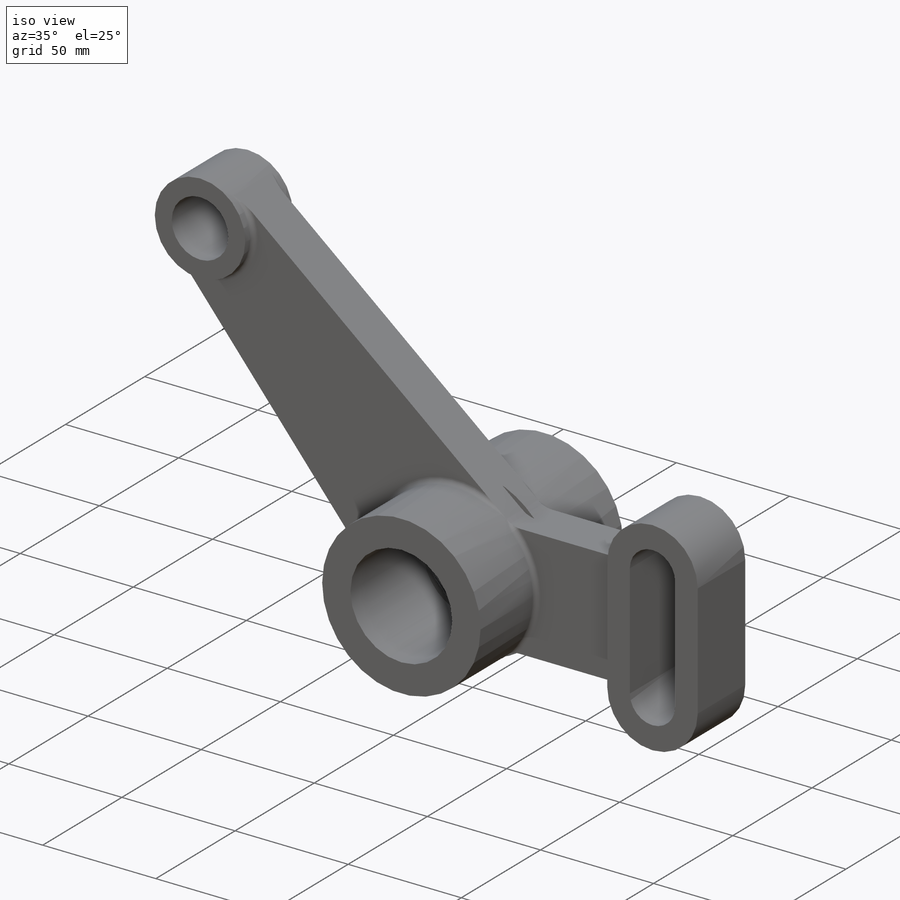
[diagram: iso view]
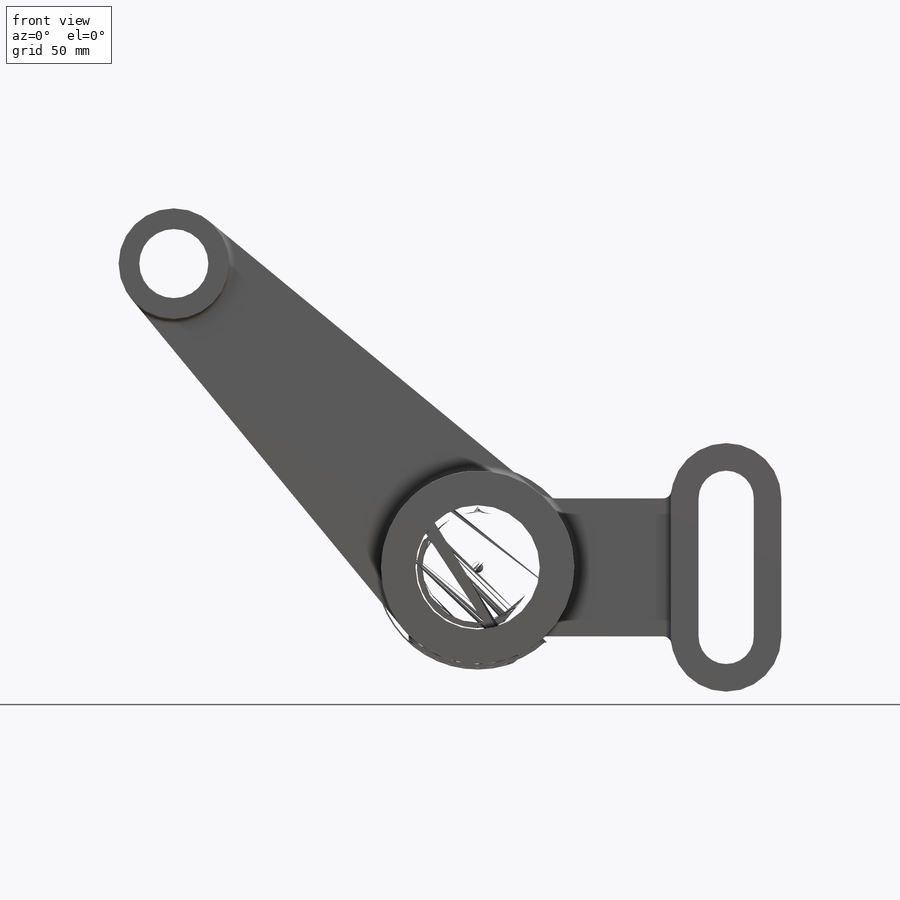
[diagram: front view]
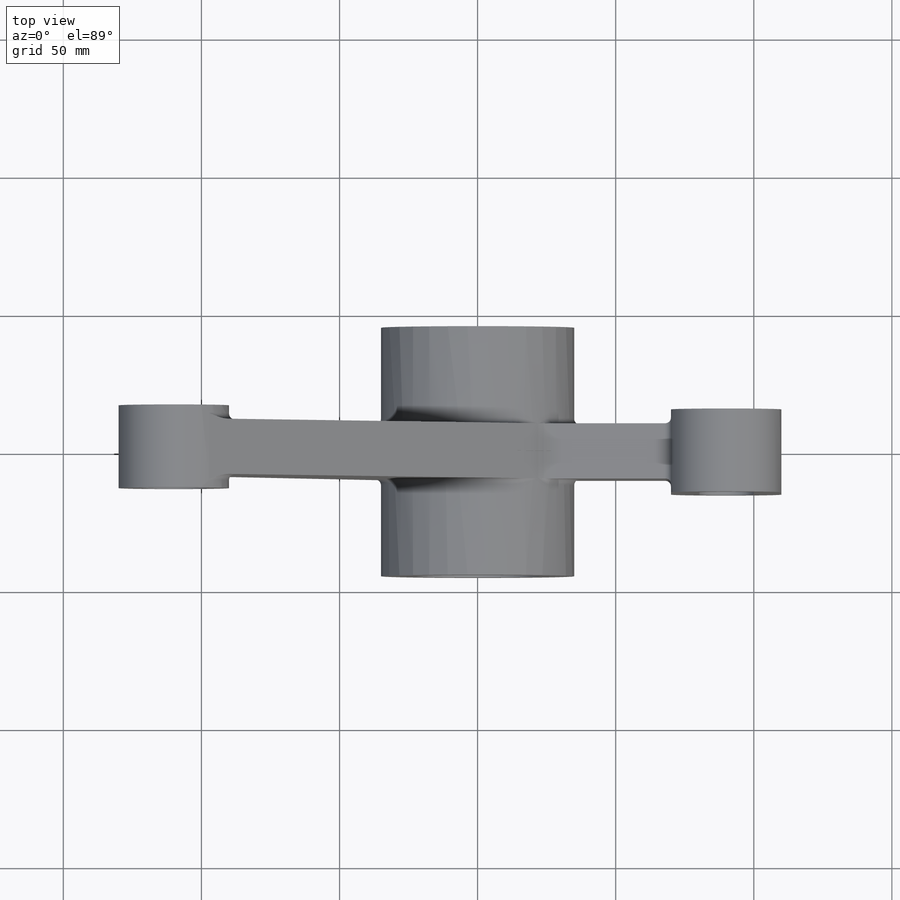
[diagram: top view]
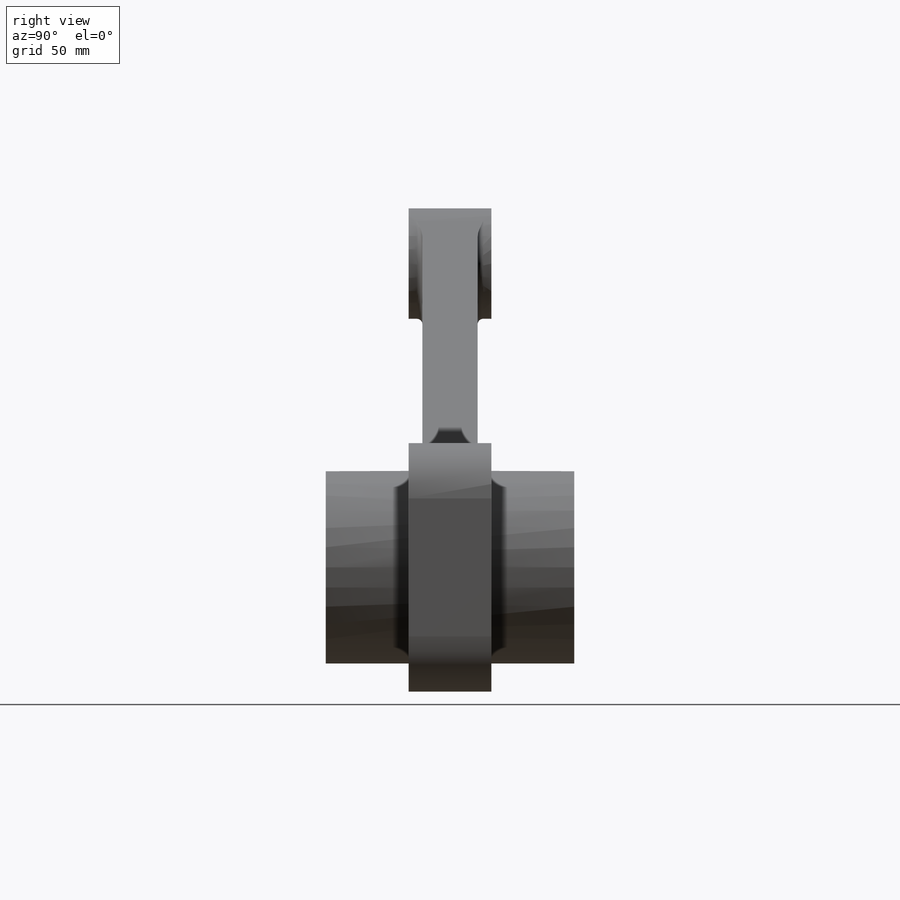
[diagram: right view]
SOLIDWORKS PART (.sldprt)
format: sldprt  version: not decoded by parser v0  size: 655,360 bytes
history: native  units: mm
features: sketch x5, plane x3, extrude x3, fillet x3, cut_extrude x2, material x1, mirror x1 (+9 scaffold rows collapsed)
feature tree (27):
  scaffold x9  (default folders/planes/origin — collapsed)
  material  "Ferro dúctil"
  plane  "Plano frontal"
  plane  "Plano superior"
  plane  "Plano direito"
  sketch  "Esboço1"  dims[c1.D3=70.0mm c1.D4=40.0mm c1.D7=20.0mm c1.D1=~133.58956mm c2.D1=45.0deg c2.D2=90.0mm c2.D5=200.0mm c3.D2=90.0mm c3.D6=50.0mm c3.D1=~155.563492mm c4.D1=45.0deg c5.D1=~155.563492mm c6.D1=45.0deg c6.D8=50.0mm]
  extrude  "Ressalto-extrusão1"  Depth=10mm
  sketch  "Esboço2"
  extrude  "Ressalto-extrusão3"  Depth=5mm
  sketch  "Esboço4"
  extrude  "Ressalto-extrusão4"  Depth=35mm
  mirror  "Espelhar1"
  sketch  "Esboço5"  dims[D1=10.0mm D2=25.0mm]
  cut_extrude  "Corte-extrusão1"  [1 undecoded]
  sketch  "Esboço6"  dims[D1=45.0mm]
  cut_extrude  "Corte-extrusão2"  [1 undecoded]
  fillet  "Filete1"  Radius=10mm
  fillet  "Filete2"  Radius=3mm
  fillet  "Filete3"  Radius=2mm
decode coverage: 9 of 14 modeling features carry decoded parameters
note: ~ marks probable driven/reference dimensions
note: 2 parameter values undecoded
note: suppression state not decoded; provenance and decode notes live in map.json
